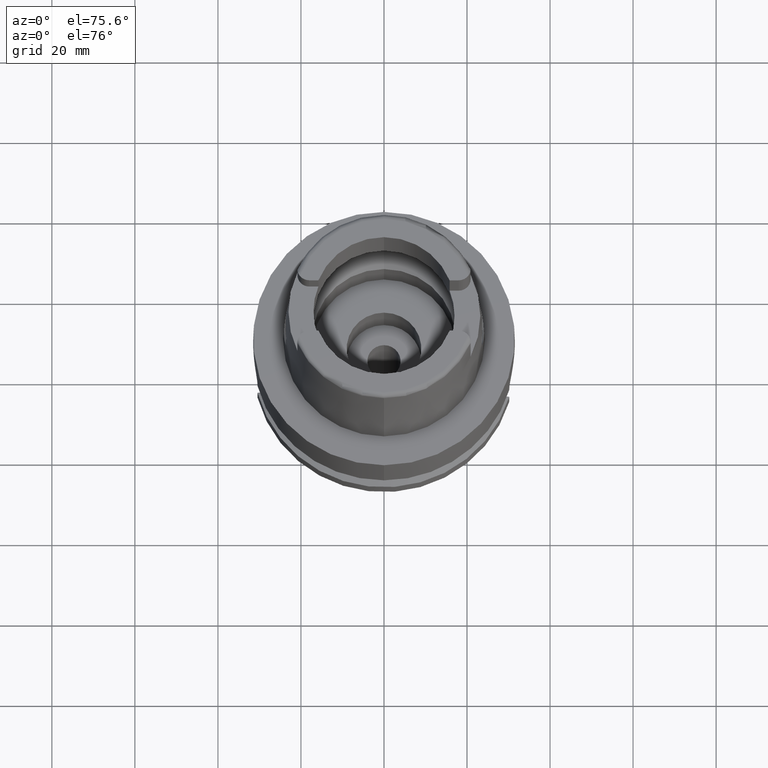
[diagram: clean part render]
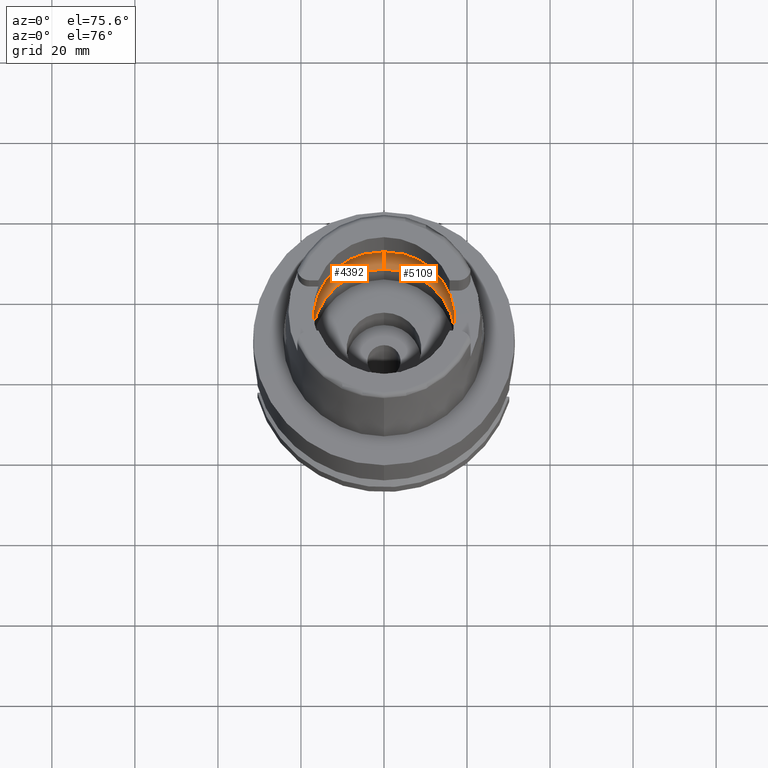
[diagram: same view with one multi-face feature highlighted, each face labeled with its STEP entity id]
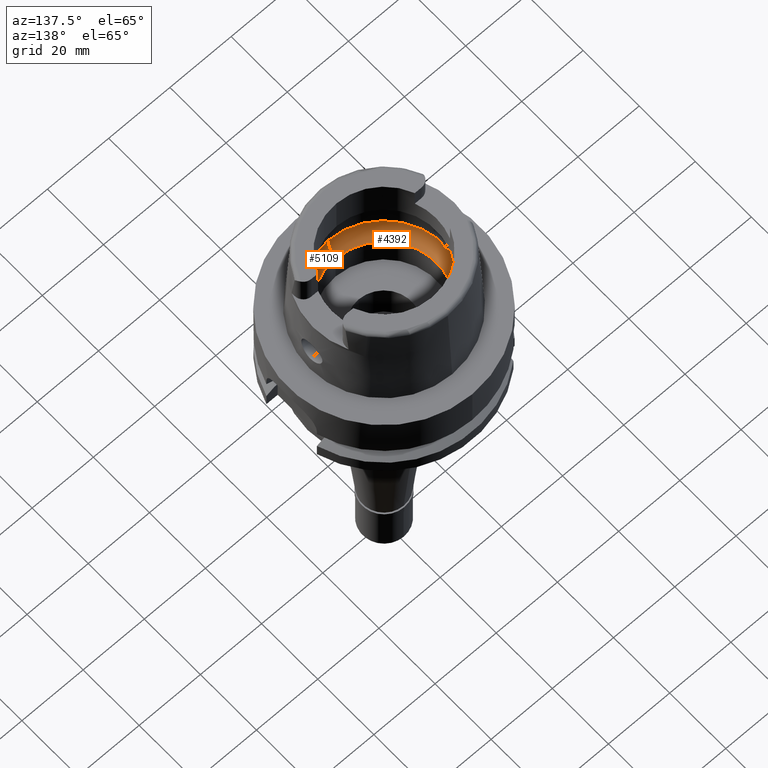
[diagram: same view with one multi-face feature highlighted, each face labeled with its STEP entity id]
A machine part, auxiliary view. The highlighted faces form ONE feature: a constant-radius fillet chain: 2 tangent blend faces with common blend radius 8 mm. The faces share edges in the B-rep.
A second angle (auxiliary view) of the same feature is appended — it is thin or edge-on in the first view.
Their STEP definitions:
[1] entity #4392 (Torus):
#93 = CARTESIAN_POINT ( 'NONE',  ( 0.0000000000000000000, 0.0000000000000000000, 6.186348233825000875 ) ) ;
#103 = CARTESIAN_POINT ( 'NONE',  ( 0.0000000000000000000, 0.0000000000000000000, 0.1500000000000999700 ) ) ;
#146 = CARTESIAN_POINT ( 'NONE',  ( -19.94501428475999916, 0.0000000000000000000, 5.250000000000000000 ) ) ;
#192 = ORIENTED_EDGE ( 'NONE', *, *, #3617, .F. ) ;
#404 = EDGE_CURVE ( 'NONE', #471, #4136, #5272, .T. ) ;
#426 = ORIENTED_EDGE ( 'NONE', *, *, #3380, .F. ) ;
#427 = CARTESIAN_POINT ( 'NONE',  ( -19.90653715571480831, -1.770134510244605108, 5.691949820981134778 ) ) ;
#453 = CARTESIAN_POINT ( 'NONE',  ( -19.94501428476000271, -0.4961205090554295927, 5.249999999999999112 ) ) ;
#471 = VERTEX_POINT ( 'NONE', #737 ) ;
#525 = DIRECTION ( 'NONE',  ( 0.0000000000000000000, 0.0000000000000000000, -1.000000000000000000 ) ) ;
#565 = CARTESIAN_POINT ( 'NONE',  ( -19.92466833620654043, -1.358330481555000357, 5.504646120092036021 ) ) ;
#594 = DIRECTION ( 'NONE',  ( 0.0000000000000000000, 0.0000000000000000000, -1.000000000000000000 ) ) ;
#648 = CARTESIAN_POINT ( 'NONE',  ( -19.92590934684916348, 1.321967521179231664, 5.490731887707026360 ) ) ;
#678 = CARTESIAN_POINT ( 'NONE',  ( -19.88331748558565337, 2.178416437711226283, 5.921431423094208668 ) ) ;
#701 = CARTESIAN_POINT ( 'NONE',  ( -19.84575864665999845, 2.479085262491000030, 6.186348233825000875 ) ) ;
#737 = CARTESIAN_POINT ( 'NONE',  ( 0.0000000000000000000, 17.25000000000000000, 0.1500000000000999700 ) ) ;
#763 = EDGE_CURVE ( 'NONE', #4922, #4106, #2444, .T. ) ;
#775 = CARTESIAN_POINT ( 'NONE',  ( 0.0000000000000000000, -20.00000000000000000, 6.186348233825000875 ) ) ;
#839 = CARTESIAN_POINT ( 'NONE',  ( -19.88058469725548960, -2.158465908505007302, 5.925243384237700361 ) ) ;
#872 = ORIENTED_EDGE ( 'NONE', *, *, #1404, .F. ) ;
#917 = CARTESIAN_POINT ( 'NONE',  ( -19.93856411452978605, -0.9461205214874995884, 5.348254081022265183 ) ) ;
#1002 = EDGE_CURVE ( 'NONE', #5150, #4922, #3162, .T. ) ;
#1047 = CARTESIAN_POINT ( 'NONE',  ( -19.92839760948977457, 1.244563320391677941, 5.462382395244434363 ) ) ;
#1110 = CARTESIAN_POINT ( 'NONE',  ( -19.90995255595180069, 1.795933884492976640, 5.670404923178902656 ) ) ;
#1113 = CARTESIAN_POINT ( 'NONE',  ( 0.0000000000000000000, 20.00000000000000000, 6.186348233825000875 ) ) ;
#1232 = DIRECTION ( 'NONE',  ( 0.0000000000000000000, 0.6562500000000006661, -0.7545435292281016393 ) ) ;
#1246 = CARTESIAN_POINT ( 'NONE',  ( -19.84575864665999845, -2.479085262491000030, 6.186348233825000875 ) ) ;
#1312 = AXIS2_PLACEMENT_3D ( 'NONE', #1391, #525, #5202 ) ;
#1332 = VERTEX_POINT ( 'NONE', #775 ) ;
#1380 = FACE_OUTER_BOUND ( 'NONE', #3404, .T. ) ;
#1391 = CARTESIAN_POINT ( 'NONE',  ( 0.0000000000000000000, 0.0000000000000000000, 6.186348233825000875 ) ) ;
#1393 = VERTEX_POINT ( 'NONE', #2906 ) ;
#1404 = EDGE_CURVE ( 'NONE', #1332, #5150, #1861, .T. ) ;
#1484 = CARTESIAN_POINT ( 'NONE',  ( 0.0000000000000000000, -12.00000000000000000, 6.186348233825000875 ) ) ;
#1527 = CARTESIAN_POINT ( 'NONE',  ( -19.93095499014167515, 1.158122409130258212, 5.432637980160435198 ) ) ;
#1548 = ORIENTED_EDGE ( 'NONE', *, *, #763, .F. ) ;
#1682 = CARTESIAN_POINT ( 'NONE',  ( -19.91819177005301000, -1.528964289322749304, 5.574905501562627208 ) ) ;
#1695 = CARTESIAN_POINT ( 'NONE',  ( 0.0000000000000000000, 12.00000000000000000, 6.186348233825000875 ) ) ;
#1764 = DIRECTION ( 'NONE',  ( 0.0000000000000000000, -1.000000000000000000, 0.0000000000000000000 ) ) ;
#1810 = DIRECTION ( 'NONE',  ( -1.000000000000000000, 0.0000000000000000000, 0.0000000000000000000 ) ) ;
#1843 = CIRCLE ( 'NONE', #3159, 7.999999999999992895 ) ;
#1861 = CIRCLE ( 'NONE', #4920, 20.00000000000000000 ) ;
#2088 = CARTESIAN_POINT ( 'NONE',  ( -19.91447754460956077, -1.610668511863758923, 5.613000592307845871 ) ) ;
#2231 = CARTESIAN_POINT ( 'NONE',  ( -19.92517005465364832, -1.343825724865722826, 5.499044007117740662 ) ) ;
#2288 = CARTESIAN_POINT ( 'NONE',  ( -19.93654847294681787, 0.9262660664784246878, 5.364596220952967620 ) ) ;
#2316 = CARTESIAN_POINT ( 'NONE',  ( -19.94340174917653741, 0.4850934172386751619, 5.274617949543730866 ) ) ;
#2357 = ORIENTED_EDGE ( 'NONE', *, *, #404, .T. ) ;
#2444 = B_SPLINE_CURVE_WITH_KNOTS ( 'NONE', 3,
 ( #5305, #3222, #2316, #3991, #2288, #4427, #1527, #1047, #2728, #4398, #3197, #648, #1110, #678, #701 ),
 .UNSPECIFIED., .F., .F.,
 ( 4, 2, 2, 1, 1, 1, 2, 2, 4 ),
 ( 0.0000000000000000000, 0.2499999999999962808, 0.3749999999999944489, 0.4374999999999933387, 0.4687499999999926725, 0.4843749999999925060, 0.4921874999999926170, 0.4999999999999926725, 1.000000000000000000 ),
 .UNSPECIFIED. ) ;
#2503 = CARTESIAN_POINT ( 'NONE',  ( -19.90056097910783350, -1.871180122140711832, 5.748256501260659235 ) ) ;
#2682 = DIRECTION ( 'NONE',  ( 0.0000000000000000000, 0.0000000000000000000, 1.000000000000000000 ) ) ;
#2685 = DIRECTION ( 'NONE',  ( 0.0000000000000000000, -1.000000000000000000, 0.0000000000000000000 ) ) ;
#2728 = CARTESIAN_POINT ( 'NONE',  ( -19.92705278000903846, 1.287130048491834211, 5.477772474817739656 ) ) ;
#2830 = CARTESIAN_POINT ( 'NONE',  ( -19.84575864665999845, -2.479085262491000030, 6.186348233825000875 ) ) ;
#2906 = CARTESIAN_POINT ( 'NONE',  ( 0.0000000000000000000, -17.25000000000000000, 0.1500000000000999700 ) ) ;
#2978 = CIRCLE ( 'NONE', #1312, 20.00000000000001421 ) ;
#2983 = CIRCLE ( 'NONE', #4799, 17.25000000000000000 ) ;
#3041 = DIRECTION ( 'NONE',  ( 0.0000000000000000000, -0.6562500000000006661, -0.7545435292281016393 ) ) ;
#3159 = AXIS2_PLACEMENT_3D ( 'NONE', #1484, #1810, #3041 ) ;
#3162 = B_SPLINE_CURVE_WITH_KNOTS ( 'NONE', 3,
 ( #1246, #4581, #839, #2503, #427, #2088, #1682, #4741, #3384, #565, #2231, #4660, #917, #453, #5102 ),
 .UNSPECIFIED., .F., .F.,
 ( 4, 2, 2, 1, 1, 1, 2, 2, 4 ),
 ( 0.0000000000000000000, 0.2499999999999940603, 0.3749999999999913958, 0.4374999999999901745, 0.4687499999999893974, 0.4843749999999892863, 0.4921874999999890643, 0.4999999999999888978, 1.000000000000000000 ),
 .UNSPECIFIED. ) ;
#3197 = CARTESIAN_POINT ( 'NONE',  ( -19.92606541691251820, 1.317269316983854521, 5.488968411680898107 ) ) ;
#3222 = CARTESIAN_POINT ( 'NONE',  ( -19.94501428476000626, 0.2480393545157578705, 5.249999999999999112 ) ) ;
#3371 = DIRECTION ( 'NONE',  ( 1.000000000000000000, 0.0000000000000000000, 0.0000000000000000000 ) ) ;
#3380 = EDGE_CURVE ( 'NONE', #4106, #4136, #2978, .T. ) ;
#3384 = CARTESIAN_POINT ( 'NONE',  ( -19.92390775950450887, -1.380027868490998566, 5.513103966555223501 ) ) ;
#3404 = EDGE_LOOP ( 'NONE', ( #872, #192, #3494, #2357, #426, #1548, #5100 ) ) ;
#3494 = ORIENTED_EDGE ( 'NONE', *, *, #3923, .F. ) ;
#3507 = AXIS2_PLACEMENT_3D ( 'NONE', #93, #594, #1764 ) ;
#3509 = DIRECTION ( 'NONE',  ( 0.0000000000000000000, 0.0000000000000000000, -1.000000000000000000 ) ) ;
#3617 = EDGE_CURVE ( 'NONE', #1393, #1332, #1843, .T. ) ;
#3923 = EDGE_CURVE ( 'NONE', #471, #1393, #2983, .T. ) ;
#3991 = CARTESIAN_POINT ( 'NONE',  ( -19.93856414242615216, 0.8186925878471068563, 5.338707303706557106 ) ) ;
#4106 = VERTEX_POINT ( 'NONE', #4802 ) ;
#4136 = VERTEX_POINT ( 'NONE', #1113 ) ;
#4285 = DIRECTION ( 'NONE',  ( 0.0000000000000000000, 1.000000000000000000, 0.0000000000000000000 ) ) ;
#4289 = CARTESIAN_POINT ( 'NONE',  ( 0.0000000000000000000, 0.0000000000000000000, 6.186348233825000875 ) ) ;
#4392 = ADVANCED_FACE ( 'NONE', ( #1380 ), #4465, .F. ) ;
#4398 = CARTESIAN_POINT ( 'NONE',  ( -19.92646225184126152, 1.305232378241161895, 5.484475898755265533 ) ) ;
#4427 = CARTESIAN_POINT ( 'NONE',  ( -19.93292026788402893, 1.081805184591627000, 5.409024518568055662 ) ) ;
#4465 = TOROIDAL_SURFACE ( 'NONE', #3507, 12.00000000000000000, 8.000000000000000000 ) ;
#4581 = CARTESIAN_POINT ( 'NONE',  ( -19.86453683997869391, -2.328760665727174217, 6.053898476926391048 ) ) ;
#4660 = CARTESIAN_POINT ( 'NONE',  ( -19.92546220624969067, -1.335247853971629928, 5.495766252403426755 ) ) ;
#4732 = AXIS2_PLACEMENT_3D ( 'NONE', #1695, #3371, #1232 ) ;
#4741 = CARTESIAN_POINT ( 'NONE',  ( -19.92207708731347893, -1.430235645114746657, 5.533216160818565932 ) ) ;
#4799 = AXIS2_PLACEMENT_3D ( 'NONE', #103, #2682, #4285 ) ;
#4802 = CARTESIAN_POINT ( 'NONE',  ( -19.84575864665999845, 2.479085262491000030, 6.186348233825000875 ) ) ;
#4920 = AXIS2_PLACEMENT_3D ( 'NONE', #4289, #3509, #2685 ) ;
#4922 = VERTEX_POINT ( 'NONE', #146 ) ;
#5100 = ORIENTED_EDGE ( 'NONE', *, *, #1002, .F. ) ;
#5102 = CARTESIAN_POINT ( 'NONE',  ( -19.94501428475999916, 0.0000000000000000000, 5.250000000000000000 ) ) ;
#5150 = VERTEX_POINT ( 'NONE', #2830 ) ;
#5202 = DIRECTION ( 'NONE',  ( -0.9922879323327794543, 0.1239542631244973381, 0.0000000000000000000 ) ) ;
#5272 = CIRCLE ( 'NONE', #4732, 7.999999999999992895 ) ;
#5305 = CARTESIAN_POINT ( 'NONE',  ( -19.94501428475999916, 0.0000000000000000000, 5.250000000000000000 ) ) ;
[2] entity #5109 (Torus):
#21 = CARTESIAN_POINT ( 'NONE',  ( 19.92590906856742095, -1.321975393417672562, 5.490734853362547518 ) ) ;
#184 = CARTESIAN_POINT ( 'NONE',  ( 19.94501428475999560, 0.4961173919640057828, 5.249999999999999112 ) ) ;
#319 = CARTESIAN_POINT ( 'NONE',  ( 19.84575864665999845, -2.479085262491000030, 6.186348233825000875 ) ) ;
#404 = EDGE_CURVE ( 'NONE', #471, #4136, #5272, .T. ) ;
#436 = CARTESIAN_POINT ( 'NONE',  ( 19.92606514397988704, -1.317277072657893289, 5.488971321394587655 ) ) ;
#459 = AXIS2_PLACEMENT_3D ( 'NONE', #4452, #1902, #1494 ) ;
#471 = VERTEX_POINT ( 'NONE', #737 ) ;
#575 = CARTESIAN_POINT ( 'NONE',  ( 19.84575864665999845, 2.479085262491000030, 6.186348233825000875 ) ) ;
#600 = CARTESIAN_POINT ( 'NONE',  ( 19.90653742522446379, 1.770129897597210178, 5.691947325404154157 ) ) ;
#715 = AXIS2_PLACEMENT_3D ( 'NONE', #1052, #3200, #1964 ) ;
#717 = FACE_OUTER_BOUND ( 'NONE', #1718, .T. ) ;
#737 = CARTESIAN_POINT ( 'NONE',  ( 0.0000000000000000000, 17.25000000000000000, 0.1500000000000999700 ) ) ;
#775 = CARTESIAN_POINT ( 'NONE',  ( 0.0000000000000000000, -20.00000000000000000, 6.186348233825000875 ) ) ;
#779 = EDGE_CURVE ( 'NONE', #4605, #1332, #4916, .T. ) ;
#791 = CARTESIAN_POINT ( 'NONE',  ( 19.92705252129803029, -1.287137646737845031, 5.477775250961266273 ) ) ;
#924 = CARTESIAN_POINT ( 'NONE',  ( 19.92546248860872282, 1.335239979097143204, 5.495763251854120846 ) ) ;
#949 = CARTESIAN_POINT ( 'NONE',  ( 19.92390804158881323, 1.380020403548397390, 5.513101011326238421 ) ) ;
#988 = ORIENTED_EDGE ( 'NONE', *, *, #779, .F. ) ;
#1025 = CARTESIAN_POINT ( 'NONE',  ( 19.92517033494361556, 1.343817989893349107, 5.499041037980064495 ) ) ;
#1052 = CARTESIAN_POINT ( 'NONE',  ( 0.0000000000000000000, 0.0000000000000000000, 0.1500000000000999700 ) ) ;
#1113 = CARTESIAN_POINT ( 'NONE',  ( 0.0000000000000000000, 20.00000000000000000, 6.186348233825000875 ) ) ;
#1232 = DIRECTION ( 'NONE',  ( 0.0000000000000000000, 0.6562500000000006661, -0.7545435292281016393 ) ) ;
#1265 = ORIENTED_EDGE ( 'NONE', *, *, #3617, .T. ) ;
#1332 = VERTEX_POINT ( 'NONE', #775 ) ;
#1393 = VERTEX_POINT ( 'NONE', #2906 ) ;
#1448 = CARTESIAN_POINT ( 'NONE',  ( 19.88058488118039335, 2.158463974044561251, 5.925241923970850699 ) ) ;
#1476 = DIRECTION ( 'NONE',  ( 0.0000000000000000000, 0.0000000000000000000, -1.000000000000000000 ) ) ;
#1484 = CARTESIAN_POINT ( 'NONE',  ( 0.0000000000000000000, -12.00000000000000000, 6.186348233825000875 ) ) ;
#1494 = DIRECTION ( 'NONE',  ( 0.9922879323327794543, -0.1239542631244973381, 0.0000000000000000000 ) ) ;
#1539 = ORIENTED_EDGE ( 'NONE', *, *, #3933, .F. ) ;
#1691 = CARTESIAN_POINT ( 'NONE',  ( 19.92839737014920942, -1.244570694252780774, 5.462384987428333893 ) ) ;
#1695 = CARTESIAN_POINT ( 'NONE',  ( 0.0000000000000000000, 12.00000000000000000, 6.186348233825000875 ) ) ;
#1718 = EDGE_LOOP ( 'NONE', ( #1539, #5254, #4246, #2254, #1265, #988, #3322 ) ) ;
#1742 = CARTESIAN_POINT ( 'NONE',  ( 19.94501428475999916, 0.0000000000000000000, 5.250000000000000000 ) ) ;
#1810 = DIRECTION ( 'NONE',  ( -1.000000000000000000, 0.0000000000000000000, 0.0000000000000000000 ) ) ;
#1843 = CIRCLE ( 'NONE', #3159, 7.999999999999992895 ) ;
#1852 = CARTESIAN_POINT ( 'NONE',  ( 19.94501428475999916, 0.0000000000000000000, 5.250000000000000000 ) ) ;
#1902 = DIRECTION ( 'NONE',  ( 0.0000000000000000000, 0.0000000000000000000, -1.000000000000000000 ) ) ;
#1943 = AXIS2_PLACEMENT_3D ( 'NONE', #2383, #5292, #4053 ) ;
#1964 = DIRECTION ( 'NONE',  ( 0.0000000000000000000, -1.000000000000000000, 0.0000000000000000000 ) ) ;
#2076 = CARTESIAN_POINT ( 'NONE',  ( 19.94501428475999916, -0.2480409057135617157, 5.249999999999999112 ) ) ;
#2096 = CARTESIAN_POINT ( 'NONE',  ( 19.93856404952062178, -0.8186975845892452419, 5.338708399471156163 ) ) ;
#2241 = CARTESIAN_POINT ( 'NONE',  ( 0.0000000000000000000, 0.0000000000000000000, 6.186348233825000875 ) ) ;
#2254 = ORIENTED_EDGE ( 'NONE', *, *, #3080, .F. ) ;
#2367 = CIRCLE ( 'NONE', #715, 17.25000000000000000 ) ;
#2383 = CARTESIAN_POINT ( 'NONE',  ( 0.0000000000000000000, 0.0000000000000000000, 6.186348233825000875 ) ) ;
#2707 = CARTESIAN_POINT ( 'NONE',  ( 19.86453694707040185, 2.328759808428484401, 6.053897721567618184 ) ) ;
#2877 = CARTESIAN_POINT ( 'NONE',  ( 19.93095478763670059, -1.158129320215844471, 5.432640215619307433 ) ) ;
#2906 = CARTESIAN_POINT ( 'NONE',  ( 0.0000000000000000000, -17.25000000000000000, 0.1500000000000999700 ) ) ;
#2960 = CARTESIAN_POINT ( 'NONE',  ( 19.84575864665999845, 2.479085262491000030, 6.186348233825000875 ) ) ;
#2967 = EDGE_CURVE ( 'NONE', #3019, #4605, #5328, .T. ) ;
#3019 = VERTEX_POINT ( 'NONE', #5079 ) ;
#3041 = DIRECTION ( 'NONE',  ( 0.0000000000000000000, -0.6562500000000006661, -0.7545435292281016393 ) ) ;
#3080 = EDGE_CURVE ( 'NONE', #1393, #471, #2367, .T. ) ;
#3120 = CARTESIAN_POINT ( 'NONE',  ( 19.92207737120660838, 1.430228553613144271, 5.533213232039442708 ) ) ;
#3159 = AXIS2_PLACEMENT_3D ( 'NONE', #1484, #1810, #3041 ) ;
#3200 = DIRECTION ( 'NONE',  ( 0.0000000000000000000, 0.0000000000000000000, 1.000000000000000000 ) ) ;
#3322 = ORIENTED_EDGE ( 'NONE', *, *, #2967, .F. ) ;
#3366 = CARTESIAN_POINT ( 'NONE',  ( 19.84575864665999845, -2.479085262491000030, 6.186348233825000875 ) ) ;
#3371 = DIRECTION ( 'NONE',  ( 1.000000000000000000, 0.0000000000000000000, 0.0000000000000000000 ) ) ;
#3393 = CARTESIAN_POINT ( 'NONE',  ( 19.92646198462450258, -1.305240071145259417, 5.484478754890461438 ) ) ;
#3398 = VERTEX_POINT ( 'NONE', #2960 ) ;
#3418 = CARTESIAN_POINT ( 'NONE',  ( 19.93654835100833367, -0.9262716854700766556, 5.364597633124620124 ) ) ;
#3454 = CARTESIAN_POINT ( 'NONE',  ( 19.92466861724970784, 1.358322854824430825, 5.504643156161263207 ) ) ;
#3617 = EDGE_CURVE ( 'NONE', #1393, #1332, #1843, .T. ) ;
#3734 = CARTESIAN_POINT ( 'NONE',  ( 19.94340172595015659, -0.4850964367992487425, 5.274618258021613215 ) ) ;
#3760 = CARTESIAN_POINT ( 'NONE',  ( 19.93292009368619233, -1.081811675228320446, 5.409026468986946057 ) ) ;
#3784 = CARTESIAN_POINT ( 'NONE',  ( 19.88331727194812970, -2.178418147904316093, 5.921432929931170541 ) ) ;
#3785 = TOROIDAL_SURFACE ( 'NONE', #1943, 12.00000000000000000, 8.000000000000000000 ) ;
#3933 = EDGE_CURVE ( 'NONE', #3398, #3019, #4910, .T. ) ;
#3941 = CARTESIAN_POINT ( 'NONE',  ( 19.93856420767916404, 0.9461146673045343070, 5.348252842016403719 ) ) ;
#4053 = DIRECTION ( 'NONE',  ( 0.0000000000000000000, -1.000000000000000000, 0.0000000000000000000 ) ) ;
#4136 = VERTEX_POINT ( 'NONE', #1113 ) ;
#4226 = AXIS2_PLACEMENT_3D ( 'NONE', #2241, #1476, #4721 ) ;
#4246 = ORIENTED_EDGE ( 'NONE', *, *, #404, .F. ) ;
#4257 = CARTESIAN_POINT ( 'NONE',  ( 19.91447782635634312, 1.610662747255747096, 5.612997844306910622 ) ) ;
#4452 = CARTESIAN_POINT ( 'NONE',  ( 0.0000000000000000000, 0.0000000000000000000, 6.186348233825000875 ) ) ;
#4496 = CIRCLE ( 'NONE', #4226, 20.00000000000000000 ) ;
#4605 = VERTEX_POINT ( 'NONE', #319 ) ;
#4669 = CARTESIAN_POINT ( 'NONE',  ( 19.90995224940876440, -1.795938227366687956, 5.670407759492696265 ) ) ;
#4695 = CARTESIAN_POINT ( 'NONE',  ( 19.91819205508162227, 1.528957928135066258, 5.574902649514004160 ) ) ;
#4721 = DIRECTION ( 'NONE',  ( 0.0000000000000000000, 1.000000000000000000, 0.0000000000000000000 ) ) ;
#4732 = AXIS2_PLACEMENT_3D ( 'NONE', #1695, #3371, #1232 ) ;
#4910 = B_SPLINE_CURVE_WITH_KNOTS ( 'NONE', 3,
 ( #575, #2707, #1448, #5164, #600, #4257, #4695, #3120, #949, #3454, #1025, #924, #3941, #184, #1852 ),
 .UNSPECIFIED., .F., .F.,
 ( 4, 2, 2, 1, 1, 1, 2, 2, 4 ),
 ( 0.0000000000000000000, 0.2499999999999997780, 0.3749999999999993339, 0.4374999999999993894, 0.4687499999999993339, 0.4843749999999992228, 0.4921874999999992228, 0.4999999999999992228, 1.000000000000000000 ),
 .UNSPECIFIED. ) ;
#4916 = CIRCLE ( 'NONE', #459, 20.00000000000001421 ) ;
#5079 = CARTESIAN_POINT ( 'NONE',  ( 19.94501428475999916, 0.0000000000000000000, 5.250000000000000000 ) ) ;
#5109 = ADVANCED_FACE ( 'NONE', ( #717 ), #3785, .F. ) ;
#5164 = CARTESIAN_POINT ( 'NONE',  ( 19.90056123289476275, 1.871176222328685412, 5.748254232980315237 ) ) ;
#5254 = ORIENTED_EDGE ( 'NONE', *, *, #5417, .F. ) ;
#5272 = CIRCLE ( 'NONE', #4732, 7.999999999999992895 ) ;
#5292 = DIRECTION ( 'NONE',  ( 0.0000000000000000000, 0.0000000000000000000, -1.000000000000000000 ) ) ;
#5328 = B_SPLINE_CURVE_WITH_KNOTS ( 'NONE', 3,
 ( #1742, #2076, #3734, #2096, #3418, #3760, #2877, #1691, #791, #3393, #436, #21, #4669, #3784, #3366 ),
 .UNSPECIFIED., .F., .F.,
 ( 4, 2, 2, 1, 1, 1, 2, 2, 4 ),
 ( 0.0000000000000000000, 0.2499999999999971134, 0.3749999999999956701, 0.4374999999999947820, 0.4687499999999943934, 0.4843749999999941713, 0.4921874999999942268, 0.4999999999999942268, 1.000000000000000000 ),
 .UNSPECIFIED. ) ;
#5417 = EDGE_CURVE ( 'NONE', #4136, #3398, #4496, .T. ) ;